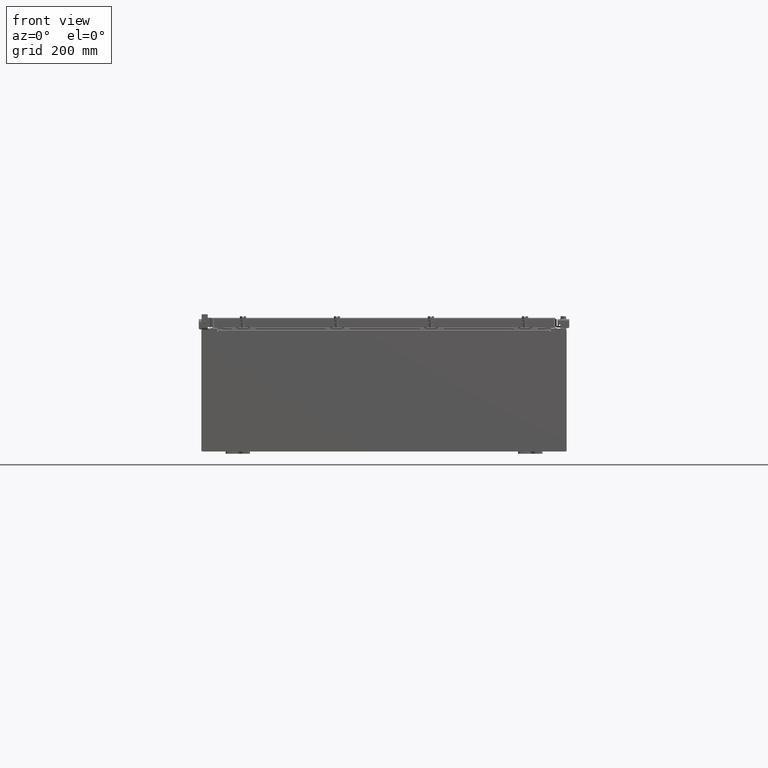
[diagram: clean part render]
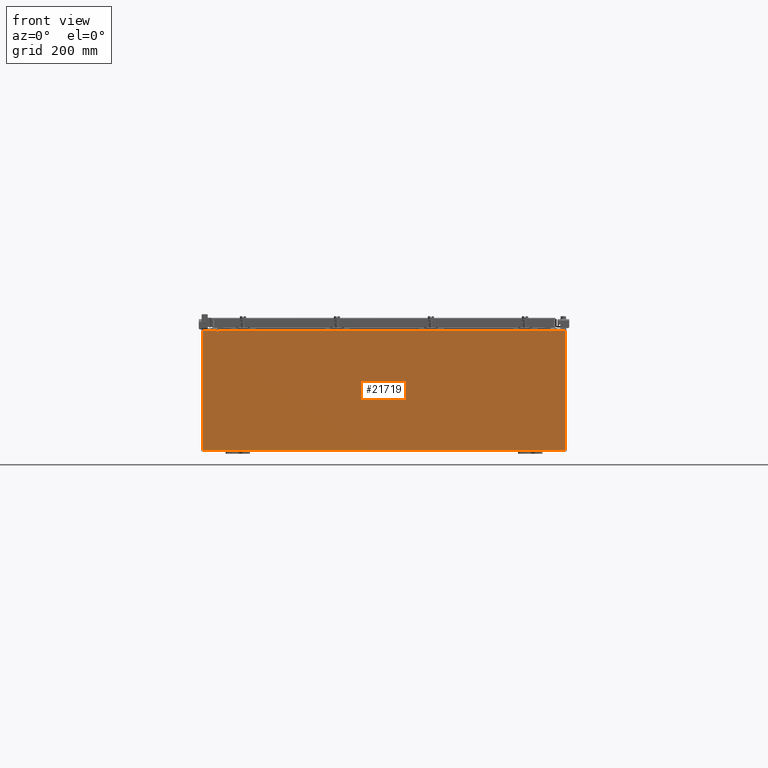
[diagram: same view with one face highlighted and labeled with its STEP entity id]
A machine part, front view. The second image highlights one B-rep face of the part: STEP entity #21719.
In plain terms, the highlighted planar face has unit normal (-0, 1, -0).
Its self-contained STEP definition (entity closure, byte-faithful):
#606 = AXIS2_PLACEMENT_3D ( 'NONE', #1154, #14439, #3059 ) ;
#634 = VERTEX_POINT ( 'NONE', #1175 ) ;
#1154 = CARTESIAN_POINT ( 'NONE',  ( 13.65587499999999800, 0.0000000000000000000, 4.874950000000000100 ) ) ;
#1175 = CARTESIAN_POINT ( 'NONE',  ( -13.67455000000000000, 0.0000000000000000000, 4.925300000000000000 ) ) ;
#1318 = CARTESIAN_POINT ( 'NONE',  ( 13.67455000000000000, 0.0000000000000000000, 4.925300000000000000 ) ) ;
#1852 = VERTEX_POINT ( 'NONE', #24236 ) ;
#2873 = CARTESIAN_POINT ( 'NONE',  ( -14.92530000000000200, 0.0000000000000000000, -4.925300000000000000 ) ) ;
#2964 = LINE ( 'NONE', #5318, #11827 ) ;
#3059 = DIRECTION ( 'NONE',  ( 0.0000000000000000000, 0.0000000000000000000, -1.000000000000000000 ) ) ;
#3518 = ORIENTED_EDGE ( 'NONE', *, *, #12828, .F. ) ;
#3832 = DIRECTION ( 'NONE',  ( 0.0000000000000000000, 0.0000000000000000000, -1.000000000000000000 ) ) ;
#3925 = EDGE_CURVE ( 'NONE', #1852, #20536, #8009, .T. ) ;
#4032 = CARTESIAN_POINT ( 'NONE',  ( -13.63720000000000000, -0.0000000000000000000, 0.0000000000000000000 ) ) ;
#4075 = CARTESIAN_POINT ( 'NONE',  ( 14.92529999999999800, 0.0000000000000000000, 4.925300000000000000 ) ) ;
#4108 = CARTESIAN_POINT ( 'NONE',  ( 13.63719999999999800, 0.0000000000000000000, 4.874950000000000100 ) ) ;
#4112 = DIRECTION ( 'NONE',  ( 0.0000000000000000000, 0.0000000000000000000, -1.000000000000000000 ) ) ;
#4458 = VECTOR ( 'NONE', #23798, 39.37007874015748100 ) ;
#4500 = DIRECTION ( 'NONE',  ( -0.0000000000000000000, 1.000000000000000000, -0.0000000000000000000 ) ) ;
#4677 = DIRECTION ( 'NONE',  ( -1.000000000000000000, -0.0000000000000000000, -0.0000000000000000000 ) ) ;
#5318 = CARTESIAN_POINT ( 'NONE',  ( -14.92530000000000200, 0.0000000000000000000, 4.925300000000000000 ) ) ;
#5483 = CARTESIAN_POINT ( 'NONE',  ( 13.67454999999978500, -0.0000000000000000000, -5.935537951421795000E-013 ) ) ;
#6377 = ORIENTED_EDGE ( 'NONE', *, *, #12208, .F. ) ;
#6459 = EDGE_CURVE ( 'NONE', #23658, #22131, #14170, .T. ) ;
#6528 = CARTESIAN_POINT ( 'NONE',  ( 13.63719999999999800, 0.0000000000000000000, 4.912300000000000100 ) ) ;
#6555 = EDGE_CURVE ( 'NONE', #18567, #18521, #11152, .T. ) ;
#7260 = VECTOR ( 'NONE', #3832, 39.37007874015748100 ) ;
#7405 = DIRECTION ( 'NONE',  ( -0.0000000000000000000, -0.0000000000000000000, 1.000000000000000000 ) ) ;
#7528 = DIRECTION ( 'NONE',  ( 0.0000000000000000000, -0.0000000000000000000, -1.000000000000000000 ) ) ;
#7729 = CARTESIAN_POINT ( 'NONE',  ( -13.67455000000000000, 0.0000000000000000000, 4.874950000000000100 ) ) ;
#8009 = LINE ( 'NONE', #8039, #17569 ) ;
#8039 = CARTESIAN_POINT ( 'NONE',  ( -14.92530000000000200, 0.0000000000000000000, 4.925300000000000000 ) ) ;
#8555 = FACE_OUTER_BOUND ( 'NONE', #15292, .T. ) ;
#8927 = VECTOR ( 'NONE', #13160, 39.37007874015748100 ) ;
#10279 = CARTESIAN_POINT ( 'NONE',  ( 14.92529999999999800, 0.0000000000000000000, -4.925300000000000000 ) ) ;
#10653 = DIRECTION ( 'NONE',  ( 1.000000000000000000, 0.0000000000000000000, 0.0000000000000000000 ) ) ;
#11152 = LINE ( 'NONE', #4032, #21336 ) ;
#11674 = AXIS2_PLACEMENT_3D ( 'NONE', #15913, #4500, #17826 ) ;
#11827 = VECTOR ( 'NONE', #18656, 39.37007874015748100 ) ;
#12096 = ORIENTED_EDGE ( 'NONE', *, *, #6555, .F. ) ;
#12208 = EDGE_CURVE ( 'NONE', #23559, #634, #18466, .T. ) ;
#12407 = EDGE_CURVE ( 'NONE', #22916, #24407, #14869, .T. ) ;
#12426 = CARTESIAN_POINT ( 'NONE',  ( -13.63720000000000400, -7.171100983368691200E-016, 4.912300000000000100 ) ) ;
#12480 = ORIENTED_EDGE ( 'NONE', *, *, #16357, .F. ) ;
#12780 = VERTEX_POINT ( 'NONE', #19507 ) ;
#12828 = EDGE_CURVE ( 'NONE', #18521, #23559, #20867, .T. ) ;
#12855 = CARTESIAN_POINT ( 'NONE',  ( 13.63719999999999800, 0.0000000000000000000, 0.0000000000000000000 ) ) ;
#12879 = EDGE_CURVE ( 'NONE', #22674, #1852, #19667, .T. ) ;
#13160 = DIRECTION ( 'NONE',  ( 0.0000000000000000000, 0.0000000000000000000, 1.000000000000000000 ) ) ;
#13358 = LINE ( 'NONE', #12426, #4458 ) ;
#13704 = DIRECTION ( 'NONE',  ( 0.0000000000000000000, 0.0000000000000000000, 1.000000000000000000 ) ) ;
#14118 = ORIENTED_EDGE ( 'NONE', *, *, #3925, .T. ) ;
#14127 = VECTOR ( 'NONE', #18892, 39.37007874015748100 ) ;
#14170 = LINE ( 'NONE', #12855, #23671 ) ;
#14269 = VECTOR ( 'NONE', #10653, 39.37007874015748100 ) ;
#14311 = CARTESIAN_POINT ( 'NONE',  ( -13.63720000000000000, -0.0000000000000000000, 4.874950000000000100 ) ) ;
#14422 = ORIENTED_EDGE ( 'NONE', *, *, #6459, .F. ) ;
#14439 = DIRECTION ( 'NONE',  ( -0.0000000000000000000, 1.000000000000000000, -0.0000000000000000000 ) ) ;
#14738 = LINE ( 'NONE', #5483, #14127 ) ;
#14869 = LINE ( 'NONE', #16345, #14269 ) ;
#15044 = PLANE ( 'NONE',  #21993 ) ;
#15202 = CARTESIAN_POINT ( 'NONE',  ( 14.92529999999999800, 0.0000000000000000000, 4.925300000000000000 ) ) ;
#15292 = EDGE_LOOP ( 'NONE', ( #6377, #3518, #12096, #22768, #14422, #15544, #12480, #15535, #24326, #23258, #14118, #18574 ) ) ;
#15441 = EDGE_CURVE ( 'NONE', #12780, #23658, #15669, .T. ) ;
#15535 = ORIENTED_EDGE ( 'NONE', *, *, #12407, .T. ) ;
#15544 = ORIENTED_EDGE ( 'NONE', *, *, #15441, .F. ) ;
#15604 = CARTESIAN_POINT ( 'NONE',  ( -14.92530000000000200, 0.0000000000000000000, 4.925300000000000000 ) ) ;
#15669 = CIRCLE ( 'NONE', #606, 0.01867499999999949400 ) ;
#15913 = CARTESIAN_POINT ( 'NONE',  ( -13.65587500000000000, 0.0000000000000000000, 4.874950000000000100 ) ) ;
#16345 = CARTESIAN_POINT ( 'NONE',  ( -14.92530000000000200, 0.0000000000000000000, 4.925300000000000000 ) ) ;
#16357 = EDGE_CURVE ( 'NONE', #22916, #12780, #14738, .T. ) ;
#16398 = EDGE_CURVE ( 'NONE', #24407, #22674, #17420, .T. ) ;
#17051 = CARTESIAN_POINT ( 'NONE',  ( 0.0000000000000000000, 0.0000000000000000000, 0.0000000000000000000 ) ) ;
#17420 = LINE ( 'NONE', #15202, #7260 ) ;
#17569 = VECTOR ( 'NONE', #7405, 39.37007874015748100 ) ;
#17826 = DIRECTION ( 'NONE',  ( 0.0000000000000000000, 0.0000000000000000000, -1.000000000000000000 ) ) ;
#18466 = LINE ( 'NONE', #22833, #8927 ) ;
#18521 = VERTEX_POINT ( 'NONE', #14311 ) ;
#18567 = VERTEX_POINT ( 'NONE', #23848 ) ;
#18574 = ORIENTED_EDGE ( 'NONE', *, *, #24151, .T. ) ;
#18656 = DIRECTION ( 'NONE',  ( 1.000000000000000000, 0.0000000000000000000, 0.0000000000000000000 ) ) ;
#18892 = DIRECTION ( 'NONE',  ( -4.340572780400004900E-014, 0.0000000000000000000, -1.000000000000000000 ) ) ;
#18966 = DIRECTION ( 'NONE',  ( 0.0000000000000000000, -1.000000000000000000, 0.0000000000000000000 ) ) ;
#19507 = CARTESIAN_POINT ( 'NONE',  ( 13.67454999999999800, 0.0000000000000000000, 4.874950000000000100 ) ) ;
#19667 = LINE ( 'NONE', #2873, #24080 ) ;
#20536 = VERTEX_POINT ( 'NONE', #15604 ) ;
#20867 = CIRCLE ( 'NONE', #11674, 0.01867499999999949400 ) ;
#21336 = VECTOR ( 'NONE', #4112, 39.37007874015748100 ) ;
#21719 = ADVANCED_FACE ( 'NONE', ( #8555 ), #15044, .F. ) ;
#21993 = AXIS2_PLACEMENT_3D ( 'NONE', #17051, #18966, #7528 ) ;
#22131 = VERTEX_POINT ( 'NONE', #6528 ) ;
#22674 = VERTEX_POINT ( 'NONE', #10279 ) ;
#22768 = ORIENTED_EDGE ( 'NONE', *, *, #23091, .T. ) ;
#22833 = CARTESIAN_POINT ( 'NONE',  ( -13.67455000000000000, -0.0000000000000000000, 0.0000000000000000000 ) ) ;
#22916 = VERTEX_POINT ( 'NONE', #1318 ) ;
#23091 = EDGE_CURVE ( 'NONE', #18567, #22131, #13358, .T. ) ;
#23258 = ORIENTED_EDGE ( 'NONE', *, *, #12879, .T. ) ;
#23559 = VERTEX_POINT ( 'NONE', #7729 ) ;
#23658 = VERTEX_POINT ( 'NONE', #4108 ) ;
#23671 = VECTOR ( 'NONE', #13704, 39.37007874015748100 ) ;
#23798 = DIRECTION ( 'NONE',  ( 1.000000000000000000, 0.0000000000000000000, 0.0000000000000000000 ) ) ;
#23848 = CARTESIAN_POINT ( 'NONE',  ( -13.63720000000000000, -7.171100983368691200E-016, 4.912300000000000100 ) ) ;
#24080 = VECTOR ( 'NONE', #4677, 39.37007874015748100 ) ;
#24151 = EDGE_CURVE ( 'NONE', #20536, #634, #2964, .T. ) ;
#24236 = CARTESIAN_POINT ( 'NONE',  ( -14.92530000000000200, 0.0000000000000000000, -4.925300000000000000 ) ) ;
#24326 = ORIENTED_EDGE ( 'NONE', *, *, #16398, .T. ) ;
#24407 = VERTEX_POINT ( 'NONE', #4075 ) ;